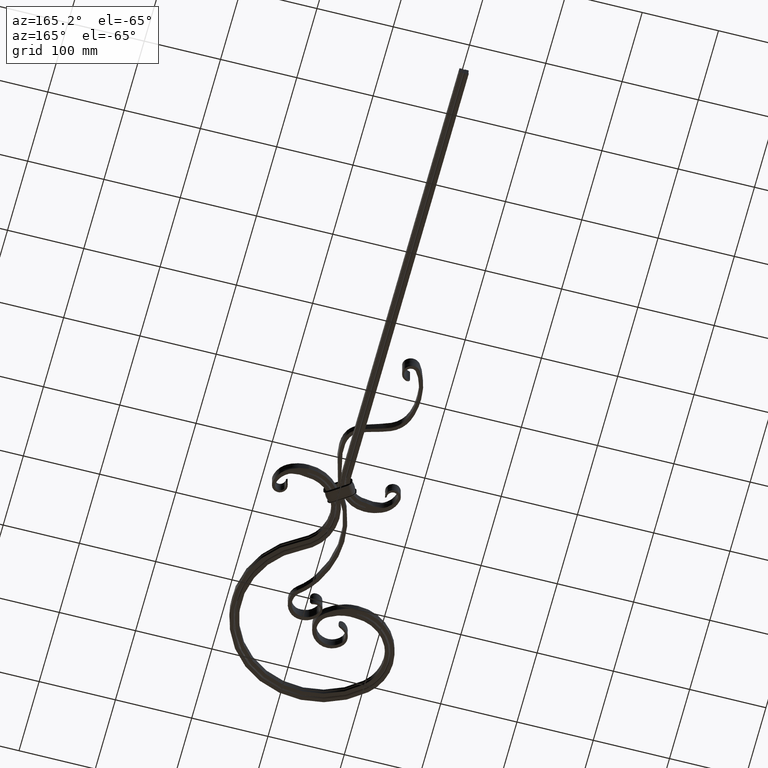
[diagram: clean part render]
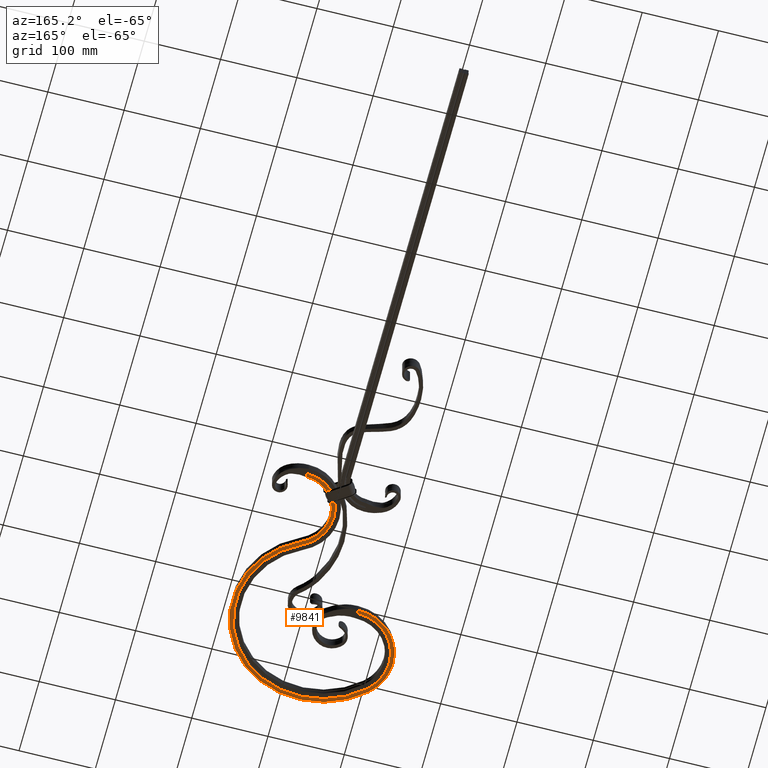
[diagram: same view with one face highlighted and labeled with its STEP entity id]
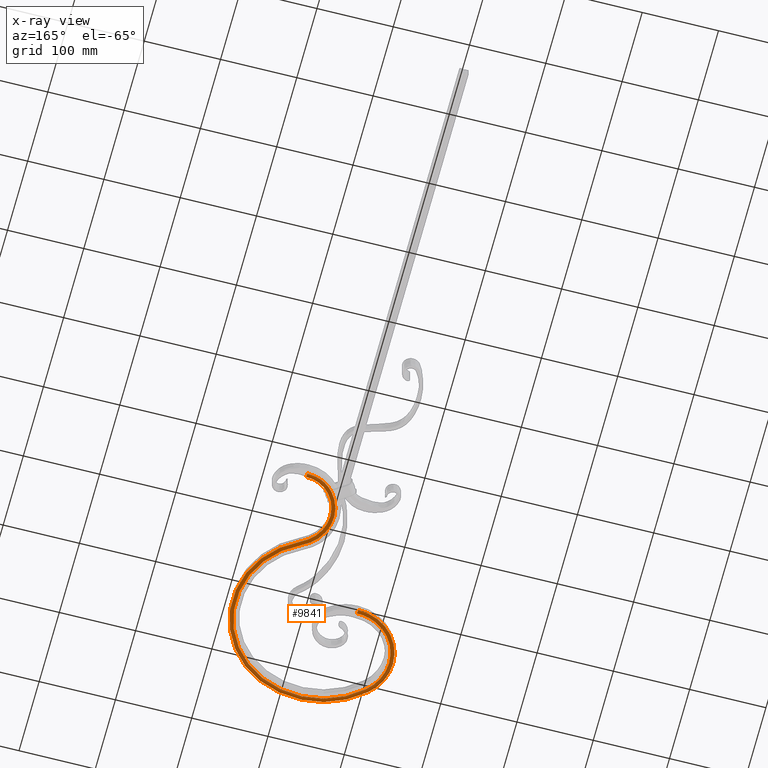
[diagram: x-ray of the same camera — body ghosted, the highlighted face saturated]
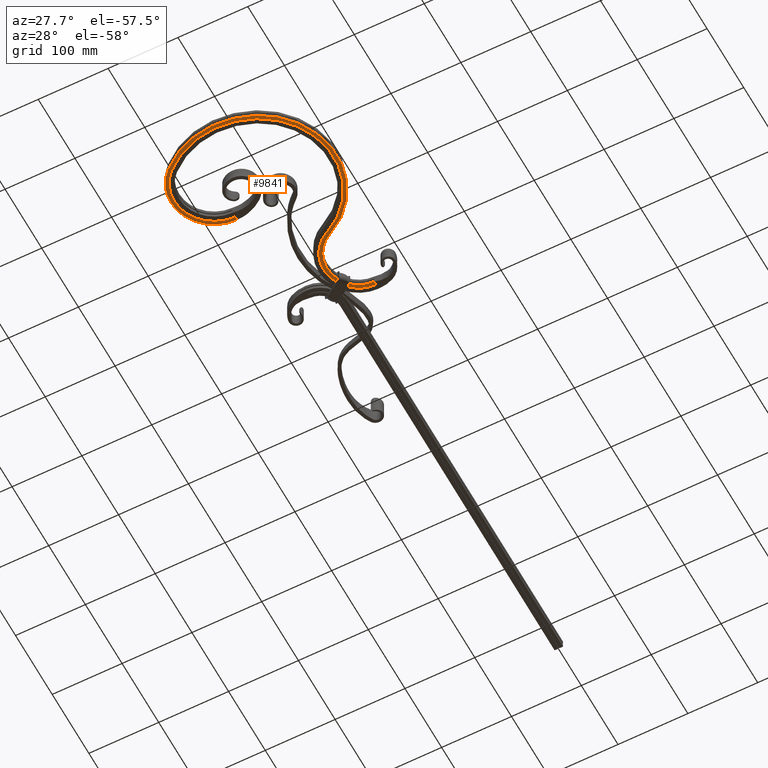
[diagram: same view with one face highlighted and labeled with its STEP entity id]
A machine part, auxiliary view. The second image highlights one B-rep face of the part: STEP entity #9841.
The next image is the same camera in x-ray: the body ghosted, the highlighted face saturated — about 0% of this face is hidden behind the body in this view.
A second angle (auxiliary view) of the same face is appended — the face is thin or edge-on in the first view.
In plain terms, the highlighted planar face has unit normal (-0, 0, 1).
Its self-contained STEP definition (entity closure, byte-faithful):
#117 = CARTESIAN_POINT ( 'NONE',  ( -106.4820274121700265, -414.0491803279089140, -6.000000000000007994 ) ) ;
#187 = DIRECTION ( 'NONE',  ( 1.000000000000000000, 0.000000000000000000, 0.000000000000000000 ) ) ;
#286 = DIRECTION ( 'NONE',  ( 0.4350118277926944832, 0.9004247384875978533, 0.000000000000000000 ) ) ;
#449 = VERTEX_POINT ( 'NONE', #2504 ) ;
#607 = CIRCLE ( 'NONE', #26289, 61.99999999999997158 ) ;
#726 = PLANE ( 'NONE',  #28417 ) ;
#838 = CARTESIAN_POINT ( 'NONE',  ( 42.97590011563531931, -145.3333333333356734, -6.000000000000007105 ) ) ;
#1245 = ORIENTED_EDGE ( 'NONE', *, *, #5704, .T. ) ;
#1354 = CARTESIAN_POINT ( 'NONE',  ( -119.6303799144820488, -396.8069051823210316, -6.000000000000009770 ) ) ;
#1628 = EDGE_CURVE ( 'NONE', #7864, #9403, #17481, .T. ) ;
#2426 = DIRECTION ( 'NONE',  ( -0.000000000000000000, 0.000000000000000000, 1.000000000000000000 ) ) ;
#2504 = CARTESIAN_POINT ( 'NONE',  ( 24.54626557381834573, -240.5435312851308822, -6.000000000000007994 ) ) ;
#2532 = ORIENTED_EDGE ( 'NONE', *, *, #13919, .F. ) ;
#2568 = CARTESIAN_POINT ( 'NONE',  ( -26.81747943605198614, -327.0000000000000000, -6.000000000000000000 ) ) ;
#2617 = DIRECTION ( 'NONE',  ( 1.000000000000000000, 0.000000000000000000, 0.000000000000000000 ) ) ;
#2639 = DIRECTION ( 'NONE',  ( 0.000000000000000000, -0.000000000000000000, -1.000000000000000000 ) ) ;
#2701 = VERTEX_POINT ( 'NONE', #20469 ) ;
#2722 = ORIENTED_EDGE ( 'NONE', *, *, #26878, .T. ) ;
#2877 = CARTESIAN_POINT ( 'NONE',  ( -22.00000000000001421, -336.8889783033039294, -6.000000000000007994 ) ) ;
#2955 = AXIS2_PLACEMENT_3D ( 'NONE', #2568, #13530, #187 ) ;
#3009 = ORIENTED_EDGE ( 'NONE', *, *, #19845, .F. ) ;
#3151 = CARTESIAN_POINT ( 'NONE',  ( 42.97590011563556800, -142.0000000000023590, -6.000000000000007105 ) ) ;
#3192 = ORIENTED_EDGE ( 'NONE', *, *, #23357, .T. ) ;
#3276 = CIRCLE ( 'NONE', #13275, 41.99999999999995737 ) ;
#3456 = EDGE_CURVE ( 'NONE', #8643, #12018, #607, .T. ) ;
#3648 = AXIS2_PLACEMENT_3D ( 'NONE', #8837, #13071, #24185 ) ;
#3681 = DIRECTION ( 'NONE',  ( 0.4379526760051773993, -0.8989980275728662873, 0.000000000000000000 ) ) ;
#3885 = DIRECTION ( 'NONE',  ( 1.000000000000000000, 0.000000000000000000, 0.000000000000000000 ) ) ;
#4057 = CARTESIAN_POINT ( 'NONE',  ( -109.8576438518817611, -417.7377049180328186, -6.000000000000000000 ) ) ;
#4063 = EDGE_CURVE ( 'NONE', #2701, #4616, #8509, .T. ) ;
#4162 = EDGE_CURVE ( 'NONE', #449, #12129, #9540, .T. ) ;
#4616 = VERTEX_POINT ( 'NONE', #21900 ) ;
#4666 = VERTEX_POINT ( 'NONE', #117 ) ;
#4933 = B_SPLINE_CURVE_WITH_KNOTS ( 'NONE', 3,
 ( #5679, #12312, #27679, #1354, #5488, #7698, #23059, #12131, #27486, #14342, #18455, #16519, #5314, #20695, #7505, #22876, #9767, #27771 ),
 .UNSPECIFIED., .F., .F.,
 ( 4, 2, 2, 2, 2, 2, 2, 2, 4 ),
 ( 0.7927548289841417350, 0.8186604753611239627, 0.8445661217381063013, 0.8704717681150886399, 0.8963774144920708675, 0.9222830608690530951, 0.9481887072460354338, 0.9740943536230177724, 0.9979859158856023704 ),
 .UNSPECIFIED. ) ;
#4969 = EDGE_CURVE ( 'NONE', #12129, #4666, #22873, .T. ) ;
#5099 = EDGE_CURVE ( 'NONE', #18929, #2701, #19097, .T. ) ;
#5160 = ORIENTED_EDGE ( 'NONE', *, *, #4063, .F. ) ;
#5243 = CARTESIAN_POINT ( 'NONE',  ( 36.18488789992338894, -141.9999998813392210, -5.999999999996999733 ) ) ;
#5314 = CARTESIAN_POINT ( 'NONE',  ( -100.5704768529625142, -324.8920773291615092, -6.000000000000013323 ) ) ;
#5488 = CARTESIAN_POINT ( 'NONE',  ( -121.9892773510896262, -391.2807871499786074, -6.000000000000009770 ) ) ;
#5679 = CARTESIAN_POINT ( 'NONE',  ( -106.4820274121700265, -414.0491803279089140, -6.000000000000007994 ) ) ;
#5704 = EDGE_CURVE ( 'NONE', #7864, #19031, #3276, .T. ) ;
#5928 = ORIENTED_EDGE ( 'NONE', *, *, #4162, .F. ) ;
#6862 = CIRCLE ( 'NONE', #6983, 52.99999999999990763 ) ;
#6892 = CARTESIAN_POINT ( 'NONE',  ( 42.97590011563531931, -147.0000000000023590, -6.000000000000000000 ) ) ;
#6983 = AXIS2_PLACEMENT_3D ( 'NONE', #18399, #11795, #9710 ) ;
#7363 = ORIENTED_EDGE ( 'NONE', *, *, #4969, .F. ) ;
#7505 = CARTESIAN_POINT ( 'NONE',  ( -85.82843293773090920, -317.6297914774911533, -6.000000000000011546 ) ) ;
#7632 = CARTESIAN_POINT ( 'NONE',  ( 11.05744090105471855, -153.8404228877115543, -6.000000000000007994 ) ) ;
#7698 = CARTESIAN_POINT ( 'NONE',  ( -124.8546443631188367, -379.3580007168605448, -6.000000000000009770 ) ) ;
#7864 = VERTEX_POINT ( 'NONE', #14517 ) ;
#8340 = DIRECTION ( 'NONE',  ( 1.000000000000000000, 0.000000000000000000, 0.000000000000000000 ) ) ;
#8509 = CIRCLE ( 'NONE', #3648, 112.0000000000001847 ) ;
#8643 = VERTEX_POINT ( 'NONE', #26061 ) ;
#8837 = CARTESIAN_POINT ( 'NONE',  ( -22.00000000000001421, -336.8889783033039294, -6.000000000000000000 ) ) ;
#9175 = DIRECTION ( 'NONE',  ( 1.000000000000000000, 0.000000000000000000, 0.000000000000000000 ) ) ;
#9403 = VERTEX_POINT ( 'NONE', #18888 ) ;
#9517 = ORIENTED_EDGE ( 'NONE', *, *, #23453, .T. ) ;
#9540 = CIRCLE ( 'NONE', #9575, 107.0000000000001421 ) ;
#9575 = AXIS2_PLACEMENT_3D ( 'NONE', #2877, #24543, #286 ) ;
#9596 = DIRECTION ( 'NONE',  ( -0.000000000000000000, 0.000000000000000000, 1.000000000000000000 ) ) ;
#9710 = DIRECTION ( 'NONE',  ( -0.7709987218785996355, 0.6368366908883043020, 0.000000000000000000 ) ) ;
#9767 = CARTESIAN_POINT ( 'NONE',  ( -72.10769118118373910, -315.0054435065555936, -5.999999999995212718 ) ) ;
#9841 = ADVANCED_FACE ( 'NONE', ( #17582 ), #726, .F. ) ;
#10717 = CARTESIAN_POINT ( 'NONE',  ( -0.3981075530887570602, -192.8210201453269690, -6.000000000000000000 ) ) ;
#11510 = CARTESIAN_POINT ( 'NONE',  ( 42.97590011563531931, -143.6666666666689878, -6.000000000000005329 ) ) ;
#11795 = DIRECTION ( 'NONE',  ( -0.000000000000000000, -0.000000000000000000, 1.000000000000000000 ) ) ;
#12018 = VERTEX_POINT ( 'NONE', #20057 ) ;
#12129 = VERTEX_POINT ( 'NONE', #12338 ) ;
#12131 = CARTESIAN_POINT ( 'NONE',  ( -124.1464746650705422, -360.2858293140441788, -6.000000000000013323 ) ) ;
#12312 = CARTESIAN_POINT ( 'NONE',  ( -110.2213434362264053, -410.6270812377853190, -6.000000000000007994 ) ) ;
#12338 = CARTESIAN_POINT ( 'NONE',  ( 24.86093633255897473, -433.0817672535983434, -6.000000000000000000 ) ) ;
#12398 = ORIENTED_EDGE ( 'NONE', *, *, #3456, .T. ) ;
#12408 = EDGE_CURVE ( 'NONE', #18929, #8643, #22643, .T. ) ;
#12432 = AXIS2_PLACEMENT_3D ( 'NONE', #15687, #2639, #17976 ) ;
#12600 = CARTESIAN_POINT ( 'NONE',  ( 10.59395379670416482, -162.2528589827298902, -6.000000000000000000 ) ) ;
#12647 = AXIS2_PLACEMENT_3D ( 'NONE', #26523, #2426, #2617 ) ;
#13071 = DIRECTION ( 'NONE',  ( -0.000000000000000000, 0.000000000000000000, 1.000000000000000000 ) ) ;
#13275 = AXIS2_PLACEMENT_3D ( 'NONE', #13588, #17883, #9175 ) ;
#13530 = DIRECTION ( 'NONE',  ( -0.000000000000000000, 0.000000000000000000, 1.000000000000000000 ) ) ;
#13588 = CARTESIAN_POINT ( 'NONE',  ( 42.97590011563531931, -189.0000000000023306, -6.000000000000000000 ) ) ;
#13803 = DIRECTION ( 'NONE',  ( 1.000000000000000000, 0.000000000000000000, 0.000000000000000000 ) ) ;
#13919 = EDGE_CURVE ( 'NONE', #4666, #21782, #4933, .T. ) ;
#13967 = ORIENTED_EDGE ( 'NONE', *, *, #5099, .F. ) ;
#14342 = CARTESIAN_POINT ( 'NONE',  ( -117.1643042753832447, -342.4686911307229025, -6.000000000000015987 ) ) ;
#14496 = CARTESIAN_POINT ( 'NONE',  ( -68.00000000000000000, -372.0000000000000000, -6.000000000000000000 ) ) ;
#14517 = CARTESIAN_POINT ( 'NONE',  ( 42.97590011563531931, -147.0000000000023590, -6.000000000000000000 ) ) ;
#15010 = CARTESIAN_POINT ( 'NONE',  ( -68.00000000000000000, -315.0008306499374271, -5.999999999998888001 ) ) ;
#15687 = CARTESIAN_POINT ( 'NONE',  ( -68.00000000000000000, -372.0000000000000000, -6.000000000000000000 ) ) ;
#16344 = CARTESIAN_POINT ( 'NONE',  ( 0.000000000000000000, 0.000000000000000000, -6.000000000000000000 ) ) ;
#16452 = CARTESIAN_POINT ( 'NONE',  ( 29.22347349354242496, -143.5235088374751911, -6.000000000000006217 ) ) ;
#16519 = CARTESIAN_POINT ( 'NONE',  ( -105.2780202003985863, -328.4578126147231956, -6.000000000000015987 ) ) ;
#16702 = AXIS2_PLACEMENT_3D ( 'NONE', #16804, #16706, #3681 ) ;
#16706 = DIRECTION ( 'NONE',  ( 0.000000000000000000, 0.000000000000000000, -1.000000000000000000 ) ) ;
#16804 = CARTESIAN_POINT ( 'NONE',  ( -26.81747943605198614, -327.0000000000000000, -6.000000000000007994 ) ) ;
#17168 = CARTESIAN_POINT ( 'NONE',  ( -68.00000000000000000, -315.0008306499374271, -5.999999999998888001 ) ) ;
#17195 = CARTESIAN_POINT ( 'NONE',  ( -68.00000000000000000, -311.6669435499791234, -6.000000000000000000 ) ) ;
#17302 = CARTESIAN_POINT ( 'NONE',  ( -68.00000000000000000, -313.3338870999583037, -6.000000000000000000 ) ) ;
#17469 = CIRCLE ( 'NONE', #20634, 47.99999999999996447 ) ;
#17481 = B_SPLINE_CURVE_WITH_KNOTS ( 'NONE', 3,
 ( #6892, #838, #11510, #3151 ),
 .UNSPECIFIED., .F., .F.,
 ( 4, 4 ),
 ( 0.000000000000000000, 0.4166666666666689611 ),
 .UNSPECIFIED. ) ;
#17582 = FACE_OUTER_BOUND ( 'NONE', #27494, .T. ) ;
#17883 = DIRECTION ( 'NONE',  ( -0.000000000000000000, 0.000000000000000000, 1.000000000000000000 ) ) ;
#17976 = DIRECTION ( 'NONE',  ( 1.000000000000000000, 0.000000000000000000, 0.000000000000000000 ) ) ;
#18399 = CARTESIAN_POINT ( 'NONE',  ( 47.60189244691120081, -192.8210201453269690, -6.000000000000007994 ) ) ;
#18455 = CARTESIAN_POINT ( 'NONE',  ( -113.5846839161151109, -337.2493252170113465, -6.000000000000015987 ) ) ;
#18668 = CARTESIAN_POINT ( 'NONE',  ( 42.97590011563556800, -142.0000000000023590, -6.000000000000007105 ) ) ;
#18888 = CARTESIAN_POINT ( 'NONE',  ( 42.97590011563556800, -142.0000000000023590, -6.000000000000007105 ) ) ;
#18929 = VERTEX_POINT ( 'NONE', #4057 ) ;
#18948 = CARTESIAN_POINT ( 'NONE',  ( 47.60189244691120081, -192.8210201453269690, -6.000000000000000000 ) ) ;
#19000 = VERTEX_POINT ( 'NONE', #23729 ) ;
#19031 = VERTEX_POINT ( 'NONE', #12600 ) ;
#19097 = CIRCLE ( 'NONE', #2955, 123.0000000000001421 ) ;
#19425 = B_SPLINE_CURVE_WITH_KNOTS ( 'NONE', 3,
 ( #28178, #17195, #17302, #15010 ),
 .UNSPECIFIED., .F., .F.,
 ( 4, 4 ),
 ( 0.000000000000000000, 1.000000000000000000 ),
 .UNSPECIFIED. ) ;
#19845 = EDGE_CURVE ( 'NONE', #9403, #19000, #26535, .T. ) ;
#20057 = CARTESIAN_POINT ( 'NONE',  ( -68.00000000000000000, -310.0000000000000000, -6.000000000000000888 ) ) ;
#20469 = CARTESIAN_POINT ( 'NONE',  ( 27.05069971252921235, -437.5767573914898207, -6.000000000000000000 ) ) ;
#20538 = ORIENTED_EDGE ( 'NONE', *, *, #24772, .F. ) ;
#20622 = CARTESIAN_POINT ( 'NONE',  ( 16.65774693356694769, -149.4450344293983051, -6.000000000000007105 ) ) ;
#20634 = AXIS2_PLACEMENT_3D ( 'NONE', #18948, #25649, #3885 ) ;
#20695 = CARTESIAN_POINT ( 'NONE',  ( -90.84003436484552196, -319.4802395371775674, -6.000000000000013323 ) ) ;
#21782 = VERTEX_POINT ( 'NONE', #17168 ) ;
#21900 = CARTESIAN_POINT ( 'NONE',  ( 26.72132471283789101, -236.0414075927198780, -6.000000000000000000 ) ) ;
#22643 = CIRCLE ( 'NONE', #12432, 61.99999999999997158 ) ;
#22873 = CIRCLE ( 'NONE', #16702, 118.0000000000000853 ) ;
#22876 = CARTESIAN_POINT ( 'NONE',  ( -76.47411267917510713, -315.4453373545565000, -6.000000000000011546 ) ) ;
#22899 = CARTESIAN_POINT ( 'NONE',  ( 6.738960187345486297, -159.0686755282468994, -5.999999999999943157 ) ) ;
#23059 = CARTESIAN_POINT ( 'NONE',  ( -125.3470769755292480, -372.9804045247931299, -6.000000000000013323 ) ) ;
#23357 = EDGE_CURVE ( 'NONE', #12018, #21782, #19425, .T. ) ;
#23417 = VERTEX_POINT ( 'NONE', #10717 ) ;
#23453 = EDGE_CURVE ( 'NONE', #23417, #4616, #26189, .T. ) ;
#23729 = CARTESIAN_POINT ( 'NONE',  ( 6.738960187345486297, -159.0686755282468994, -5.999999999999943157 ) ) ;
#24185 = DIRECTION ( 'NONE',  ( 1.000000000000000000, 0.000000000000000000, 0.000000000000000000 ) ) ;
#24332 = ORIENTED_EDGE ( 'NONE', *, *, #1628, .F. ) ;
#24497 = ORIENTED_EDGE ( 'NONE', *, *, #12408, .T. ) ;
#24543 = DIRECTION ( 'NONE',  ( 0.000000000000000000, 0.000000000000000000, -1.000000000000000000 ) ) ;
#24772 = EDGE_CURVE ( 'NONE', #19000, #449, #6862, .T. ) ;
#25649 = DIRECTION ( 'NONE',  ( -0.000000000000000000, 0.000000000000000000, 1.000000000000000000 ) ) ;
#25910 = DIRECTION ( 'NONE',  ( 0.000000000000000000, -0.000000000000000000, -1.000000000000000000 ) ) ;
#26061 = CARTESIAN_POINT ( 'NONE',  ( -129.9999999999999716, -372.0000000000000000, -6.000000000000000000 ) ) ;
#26189 = CIRCLE ( 'NONE', #12647, 47.99999999999996447 ) ;
#26289 = AXIS2_PLACEMENT_3D ( 'NONE', #14496, #25910, #8340 ) ;
#26523 = CARTESIAN_POINT ( 'NONE',  ( 47.60189244691120081, -192.8210201453269690, -6.000000000000000000 ) ) ;
#26535 = B_SPLINE_CURVE_WITH_KNOTS ( 'NONE', 3,
 ( #18668, #5243, #16452, #20622, #7632, #22899 ),
 .UNSPECIFIED., .F., .F.,
 ( 4, 2, 4 ),
 ( 0.001559512829262787656, 0.03389171563766409795, 0.06622391844606538569 ),
 .UNSPECIFIED. ) ;
#26878 = EDGE_CURVE ( 'NONE', #19031, #23417, #17469, .T. ) ;
#27486 = CARTESIAN_POINT ( 'NONE',  ( -122.4533640624769220, -353.9983854558660710, -6.000000000000015987 ) ) ;
#27494 = EDGE_LOOP ( 'NONE', ( #2532, #7363, #5928, #20538, #3009, #24332, #1245, #2722, #9517, #5160, #13967, #24497, #12398, #3192 ) ) ;
#27679 = CARTESIAN_POINT ( 'NONE',  ( -113.7391330392342041, -406.4820309453925233, -6.000000000000009770 ) ) ;
#27771 = CARTESIAN_POINT ( 'NONE',  ( -68.00000000000000000, -315.0008306499374271, -5.999999999998888001 ) ) ;
#28178 = CARTESIAN_POINT ( 'NONE',  ( -68.00000000000000000, -310.0000000000000000, -6.000000000000000888 ) ) ;
#28417 = AXIS2_PLACEMENT_3D ( 'NONE', #16344, #9596, #13803 ) ;